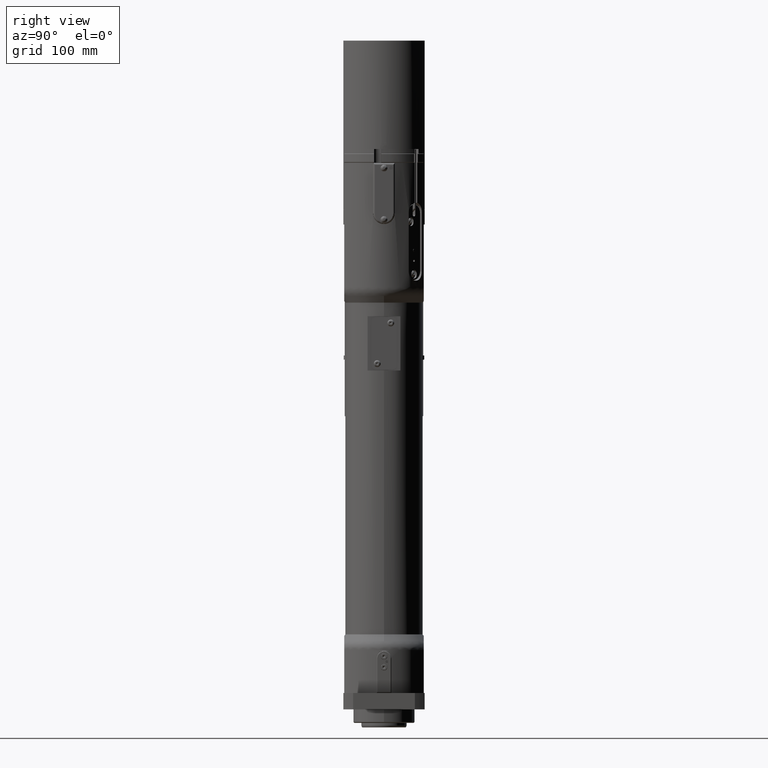
[diagram: clean part render]
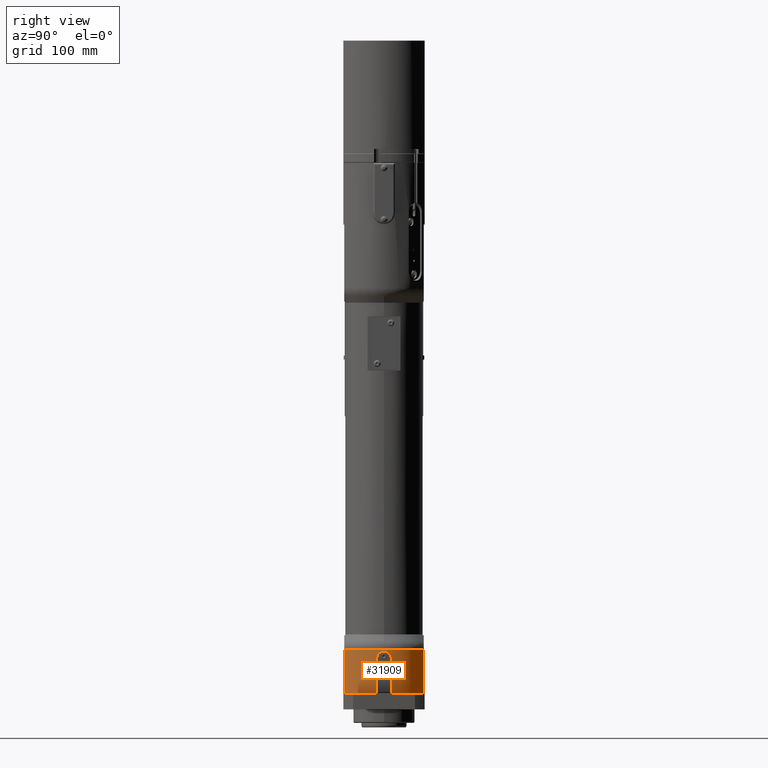
[diagram: same view with one face highlighted and labeled with its STEP entity id]
A machine part, right view. The second image highlights one B-rep face of the part: STEP entity #31909.
In plain terms, the highlighted cylindrical surface (partial cylindrical patch) has radius 50 mm, axis along (-0, 0, 1).
Its self-contained STEP definition (entity closure, byte-faithful):
#1523=LINE('',#46562,#4176);
#2173=LINE('',#50171,#4826);
#2174=LINE('',#50173,#4827);
#2175=LINE('',#50176,#4828);
#4176=VECTOR('',#36807,38.5);
#4826=VECTOR('',#39541,38.5);
#4827=VECTOR('',#39542,47.5166604983954);
#4828=VECTOR('',#39545,47.5166604983954);
#7112=CYLINDRICAL_SURFACE('',#34320,50.);
#7963=FACE_OUTER_BOUND('',#9798,.T.);
#9798=EDGE_LOOP('',(#23220,#23221,#23222,#23223,#23224,#23225,#23226,#23227));
#11277=B_SPLINE_CURVE_WITH_KNOTS('',3,(#50177,#50178,#50179,#50180,#50181,
#50182,#50183,#50184,#50185,#50186,#50187,#50188,#50189,#50190,#50191,#50192,
#50193,#50194),.UNSPECIFIED.,.F.,.F.,(4,2,2,2,2,2,2,2,4),(-2.41526028793695,
-2.11334933459019,-1.81143838124344,-1.50953426260596,-1.20763014396847,
-0.905726025330988,-0.603821906693503,-0.301910953346752,0.),
 .UNSPECIFIED.);
#11378=CIRCLE('',#33269,50.);
#11380=CIRCLE('',#33271,50.);
#11889=CIRCLE('',#34321,50.);
#12995=VERTEX_POINT('',#46526);
#12996=VERTEX_POINT('',#46528);
#12999=VERTEX_POINT('',#46534);
#13000=VERTEX_POINT('',#46536);
#13011=VERTEX_POINT('',#46560);
#13878=VERTEX_POINT('',#50170);
#13879=VERTEX_POINT('',#50172);
#13880=VERTEX_POINT('',#50174);
#16026=EDGE_CURVE('',#12995,#12996,#11378,.T.);
#16030=EDGE_CURVE('',#12999,#13000,#11380,.T.);
#16043=EDGE_CURVE('',#12995,#13011,#1523,.T.);
#17382=EDGE_CURVE('',#13878,#13000,#2173,.T.);
#17383=EDGE_CURVE('',#12999,#13879,#2174,.T.);
#17384=EDGE_CURVE('',#13880,#13879,#11889,.T.);
#17385=EDGE_CURVE('',#13880,#12996,#2175,.T.);
#17386=EDGE_CURVE('',#13878,#13011,#11277,.F.);
#23220=ORIENTED_EDGE('',*,*,#17382,.T.);
#23221=ORIENTED_EDGE('',*,*,#16030,.F.);
#23222=ORIENTED_EDGE('',*,*,#17383,.T.);
#23223=ORIENTED_EDGE('',*,*,#17384,.F.);
#23224=ORIENTED_EDGE('',*,*,#17385,.T.);
#23225=ORIENTED_EDGE('',*,*,#16026,.F.);
#23226=ORIENTED_EDGE('',*,*,#16043,.T.);
#23227=ORIENTED_EDGE('',*,*,#17386,.F.);
#31909=ADVANCED_FACE('',(#7963),#7112,.T.);
#33269=AXIS2_PLACEMENT_3D('',#46529,#36779,#36780);
#33271=AXIS2_PLACEMENT_3D('',#46537,#36785,#36786);
#34320=AXIS2_PLACEMENT_3D('',#50169,#39539,#39540);
#34321=AXIS2_PLACEMENT_3D('',#50175,#39543,#39544);
#36779=DIRECTION('center_axis',(1.66741034889409E-13,-7.79443320540944E-15,
-1.));
#36780=DIRECTION('ref_axis',(-1.,1.29112725371859E-13,-1.6674103488941E-13));
#36785=DIRECTION('center_axis',(1.66741034889409E-13,-7.79443320540944E-15,
-1.));
#36786=DIRECTION('ref_axis',(-1.,1.29112725371859E-13,-1.6674103488941E-13));
#36807=DIRECTION('',(-1.67023682042309E-13,7.75714269153681E-15,1.));
#39539=DIRECTION('center_axis',(-1.66741034889409E-13,7.79443320540401E-15,
1.));
#39540=DIRECTION('ref_axis',(1.,-1.28990260691945E-13,1.6674103488941E-13));
#39541=DIRECTION('',(1.66562290655452E-13,-7.78597965321538E-15,-1.));
#39542=DIRECTION('',(-1.66732077141504E-13,7.85061349769413E-15,1.));
#39543=DIRECTION('center_axis',(-1.66741034889409E-13,7.79443320540401E-15,
1.));
#39544=DIRECTION('ref_axis',(-1.,1.29112725371859E-13,-1.6674103488941E-13));
#39545=DIRECTION('',(1.66732077141504E-13,-7.85061349769413E-15,-1.));
#46526=CARTESIAN_POINT('',(49.3558507171287,-8.00000000002788,18.0000000000636));
#46528=CARTESIAN_POINT('',(23.7486841741876,-44.0000000000246,18.0000000000596));
#46529=CARTESIAN_POINT('Origin',(1.17462187604946E-10,-2.15143968060589E-11,
18.0000000000553));
#46534=CARTESIAN_POINT('',(23.7486841741989,43.9999999999754,18.0000000000589));
#46536=CARTESIAN_POINT('',(49.3558507171308,7.99999999997206,18.0000000000635));
#46537=CARTESIAN_POINT('Origin',(1.17462187604946E-10,-2.15143968060589E-11,
18.0000000000553));
#46560=CARTESIAN_POINT('',(49.3558507171223,-8.00000000002759,56.5000000000636));
#46562=CARTESIAN_POINT('',(49.3558507171287,-8.00000000002788,18.0000000000636));
#50169=CARTESIAN_POINT('Origin',(1.17462187604946E-10,-2.15143968060589E-11,
18.0000000000553));
#50170=CARTESIAN_POINT('',(49.3558507171244,7.99999999997236,56.5000000000635));
#50171=CARTESIAN_POINT('',(49.3558507171244,7.99999999997236,56.5000000000635));
#50172=CARTESIAN_POINT('',(23.748684174191,43.9999999999758,65.5166604984543));
#50173=CARTESIAN_POINT('',(23.7486841741989,43.9999999999754,18.0000000000589));
#50174=CARTESIAN_POINT('',(23.7486841741797,-44.0000000000242,65.516660498455));
#50175=CARTESIAN_POINT('Origin',(1.09539210458955E-10,-2.11440313696603E-11,
65.5166604984507));
#50176=CARTESIAN_POINT('',(23.7486841741797,-44.0000000000242,65.516660498455));
#50177=CARTESIAN_POINT('Ctrl Pts',(49.3558507171223,-8.00000000002765,56.5000000000636));
#50178=CARTESIAN_POINT('Ctrl Pts',(49.3558507171221,-8.00000000002764,57.5063698445528));
#50179=CARTESIAN_POINT('Ctrl Pts',(49.3898131081181,-7.7985219773186,58.5786141329377));
#50180=CARTESIAN_POINT('Ctrl Pts',(49.5119015529705,-6.98156046973162,60.5491230400807));
#50181=CARTESIAN_POINT('Ctrl Pts',(49.5982009321072,-6.36616966579272,61.4475388332833));
#50182=CARTESIAN_POINT('Ctrl Pts',(49.7597360266557,-4.94755489084509,62.866153608231));
#50183=CARTESIAN_POINT('Ctrl Pts',(49.8455508247695,-4.04913218976936,63.4815570083414));
#50184=CARTESIAN_POINT('Ctrl Pts',(49.9665271171952,-2.07859960523728,64.2985276684426));
#50185=CARTESIAN_POINT('Ctrl Pts',(50.0000000001096,-1.00634706215261,64.5000000000637));
#50186=CARTESIAN_POINT('Ctrl Pts',(50.0000000001098,1.00634706209729,64.5000000000636));
#50187=CARTESIAN_POINT('Ctrl Pts',(49.9665271171957,2.07859960518196,64.2985276684425));
#50188=CARTESIAN_POINT('Ctrl Pts',(49.8455508247705,4.04913218971407,63.4815570083414));
#50189=CARTESIAN_POINT('Ctrl Pts',(49.759736026657,4.9475548907898,62.8661536082309));
#50190=CARTESIAN_POINT('Ctrl Pts',(49.5982009321089,6.36616966573745,61.4475388332832));
#50191=CARTESIAN_POINT('Ctrl Pts',(49.5119015529723,6.98156046967637,60.5491230400806));
#50192=CARTESIAN_POINT('Ctrl Pts',(49.3898131081201,7.79852197726334,58.5786141329376));
#50193=CARTESIAN_POINT('Ctrl Pts',(49.3558507171242,7.99999999997237,57.5063698445526));
#50194=CARTESIAN_POINT('Ctrl Pts',(49.3558507171243,7.99999999997237,56.5000000000635));